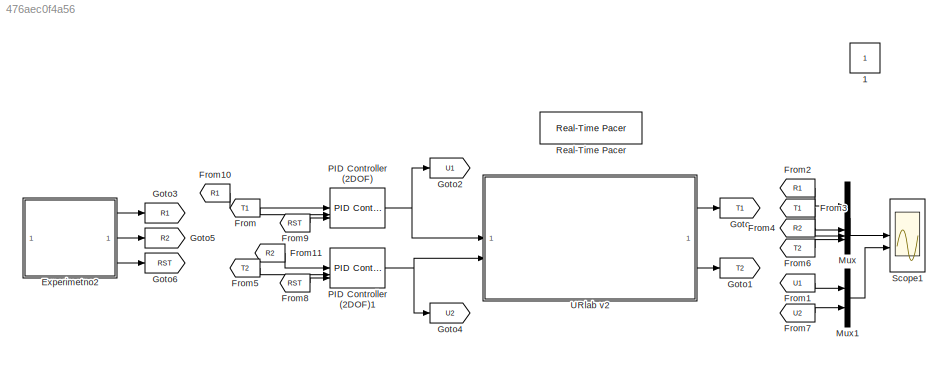
MODEL slx_476aec0f4a56
KIND model
CONFIG AbsTol = auto
CONFIG EnableMultiTasking = on
CONFIG FixedStep = auto
CONFIG MaxStep = auto
CONFIG MinStep = auto
CONFIG RelTol = 1e-3
CONFIG SampleTimeConstraint = Unconstrained
CONFIG SolverName = VariableStepAuto
CONFIG StartTime = 0.0
CONFIG StopTime = 1000
BLOCK [Constant] 1
  IOType = siggen
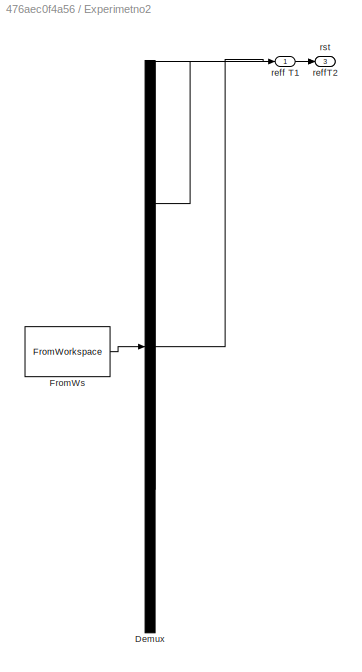
BLOCK [SubSystem] Experimetno2
  ClipboardFcn = sigbuilder_block('clipboard');
  CloseFcn = sigbuilder_block('close');
  ContinueFcn = sigbuilder_block('continue');
  CopyFcn = sigbuilder_block('copy');
  DeleteFcn = sigbuilder_block('delete');
  LoadFcn = sigbuilder_block('load');
  MaskHideContents = on
  ModelCloseFcn = sigbuilder_block('modelClose');
  NameChangeFcn = sigbuilder_block('namechange');
  OpenFcn = sigbuilder_block('open',[6 36 1908 945.75 ]);
  PauseFcn = sigbuilder_block('pause');
  PreSaveFcn = sigbuilder_block('preSave');
  StartFcn = sigbuilder_block('start');
  StopFcn = sigbuilder_block('stop');
  Tag = STV Subsys
BLOCK [Demux] Experimetno2/Demux
  DisplayOption = none
  Outputs = 3
  Tag = STV Demux
BLOCK [FromWorkspace] Experimetno2/FromWs
  Tag = STV FromWs
  VariableName = tuvar
BLOCK [Outport] Experimetno2/reff T1
  Tag = STV Outport
  VectorParamsAs1DForOutWhenUnconnected = off
BLOCK [Outport] Experimetno2/reffT2
  Port = 2
  Tag = STV Outport
BLOCK [Outport] Experimetno2/rst
  Port = 3
  Tag = STV Outport
BLOCK [From] From
  GotoTag = T1
BLOCK [From] From1
  GotoTag = U1
BLOCK [From] From10
  GotoTag = R1
BLOCK [From] From11
  GotoTag = R2
BLOCK [From] From2
  GotoTag = R1
BLOCK [From] From3
  GotoTag = T1
BLOCK [From] From4
  GotoTag = R2
BLOCK [From] From5
  GotoTag = T2
BLOCK [From] From6
  GotoTag = T2
BLOCK [From] From7
  GotoTag = U2
BLOCK [From] From8
  GotoTag = RST
BLOCK [From] From9
  GotoTag = RST
BLOCK [Goto] Goto
  GotoTag = T1
BLOCK [Goto] Goto1
  GotoTag = T2
BLOCK [Goto] Goto2
  GotoTag = U1
BLOCK [Goto] Goto3
  GotoTag = R1
BLOCK [Goto] Goto4
  GotoTag = U2
BLOCK [Goto] Goto5
  GotoTag = R2
BLOCK [Goto] Goto6
  GotoTag = RST
BLOCK [Mux] Mux
  DisplayOption = bar
BLOCK [Mux] Mux1
  DisplayOption = bar
  Inputs = 2
BLOCK [Reference] PID Controller (2DOF)  REF=slpidlib/PID Controller (2DOF)
  LibrarySourceBlock = simulink/Continuous/PID Controller (2DOF)
  SourceBlock = slpidlib/PID Controller (2DOF)
  SourceType = PID 2dof
BLOCK [Reference] PID Controller (2DOF)1  REF=slpidlib/PID Controller (2DOF)
  LibrarySourceBlock = simulink/Continuous/PID Controller (2DOF)
  SourceBlock = slpidlib/PID Controller (2DOF)
  SourceType = PID 2dof
BLOCK [Reference] Real-Time Pacer  REF=realtime_pacer_lib/Real-Time Pacer
  SourceBlock = realtime_pacer_lib/Real-Time Pacer
  SourceType = RealTime_Pacer
BLOCK [Scope] Scope1
  Floating = off
  NumInputPorts = 2
  ScopeSpecificationString = Simulink.scopes.TimeScopeBlockCfg('CurrentConfiguration', extmgr.ConfigurationSet(extmgr.Configuration('Core','General UI',true),extmgr.Configuration('Core','Source UI',true),extmgr.Configuration('Sources','WiredSimulink',true,'DataLoggingVariableName','DatosURlab','DataLogging',true,'DataLoggingSaveFormat','StructureWithTime'),extmgr.Configuration('Visuals','Time Domain',true,'SerializedDisplays'...<+2872ch>
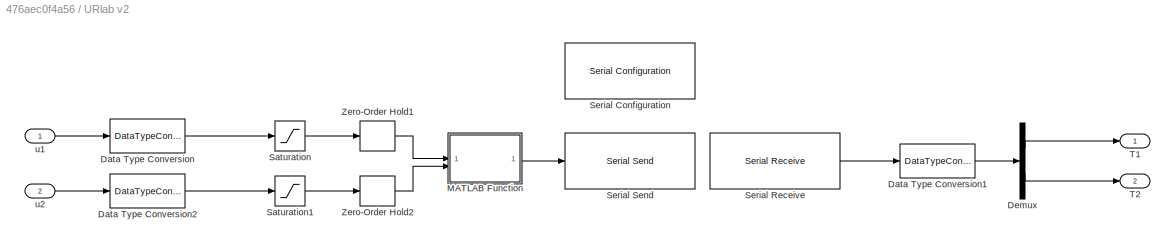
BLOCK [SubSystem] URlab v2
BLOCK [DataTypeConversion] URlab v2/Data Type Conversion
  OutDataTypeStr = single
  RndMeth = Floor
  SaturateOnIntegerOverflow = off
BLOCK [DataTypeConversion] URlab v2/Data Type Conversion1
  OutDataTypeStr = double
  RndMeth = Floor
  SaturateOnIntegerOverflow = off
BLOCK [DataTypeConversion] URlab v2/Data Type Conversion2
  OutDataTypeStr = single
  RndMeth = Floor
  SaturateOnIntegerOverflow = off
BLOCK [Demux] URlab v2/Demux
  Outputs = 2
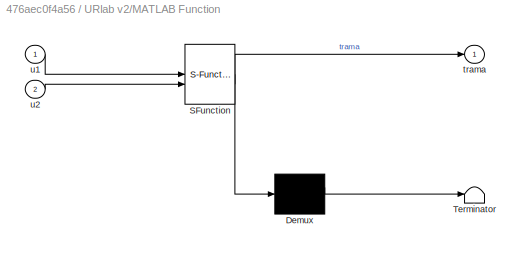
BLOCK [SubSystem] URlab v2/MATLAB Function
  ErrorFcn = Stateflow.Translate.translate
  LibrarySourceBlock = simulink/User-Defined\nFunctions/MATLAB Function
  PermitHierarchicalResolution = ExplicitOnly
  SFBlockType = MATLAB Function
  SystemSampleTime = 0.5
  TreatAsAtomicUnit = on
BLOCK [Demux] URlab v2/MATLAB Function/ Demux 
  Outputs = 1
BLOCK [S-Function] URlab v2/MATLAB Function/ SFunction 
  EnableBusSupport = on
  FunctionName = sf_sfun
  PortCounts = [2 2]
  SFcnIsStateOwnerBlock = off
  SFunctionDeploymentMode = off
  Tag = Stateflow S-Function 2
BLOCK [Terminator] URlab v2/MATLAB Function/ Terminator 
BLOCK [Outport] URlab v2/MATLAB Function/trama
BLOCK [Inport] URlab v2/MATLAB Function/u1
BLOCK [Inport] URlab v2/MATLAB Function/u2
  Port = 2
BLOCK [Saturate] URlab v2/Saturation
  LowerLimit = 0
  UpperLimit = 100
BLOCK [Saturate] URlab v2/Saturation1
  LowerLimit = 0
  UpperLimit = 100
BLOCK [Reference] URlab v2/Serial Configuration  REF=instrumentseriallib/Serial Configuration
  LibrarySourceBlock = instrumentlib/Serial Configuration
  Priority = -200000
  SourceBlock = instrumentseriallib/Serial Configuration
  SourceType = system.SerialConfiguration
BLOCK [Reference] URlab v2/Serial Receive  REF=instrumentseriallib/Serial Receive
  LibrarySourceBlock = instrumentlib/Serial Receive
  Priority = 1
  SourceBlock = instrumentseriallib/Serial Receive
  SourceType = system.SerialReceive
BLOCK [Reference] URlab v2/Serial Send  REF=instrumentseriallib/Serial Send
  LibrarySourceBlock = instrumentlib/Serial Send
  Priority = 1
  SourceBlock = instrumentseriallib/Serial Send
  SourceType = system.SerialSend
BLOCK [Outport] URlab v2/T1
BLOCK [Outport] URlab v2/T2
  Port = 2
BLOCK [ZeroOrderHold] URlab v2/Zero-Order Hold1
  SampleTime = 0.5
BLOCK [ZeroOrderHold] URlab v2/Zero-Order Hold2
  SampleTime = 0.5
BLOCK [Inport] URlab v2/u1
BLOCK [Inport] URlab v2/u2
  Port = 2
LINE Experimetno2:1 -> Goto3:1
LINE Experimetno2:2 -> Goto5:1
LINE Experimetno2:3 -> Goto6:1
LINE From10:1 -> PID Controller (2DOF):1
LINE From11:1 -> PID Controller (2DOF)1:1
LINE From1:1 -> Mux1:1
LINE From2:1 -> Mux:1
LINE From3:1 -> Mux:2
LINE From4:1 -> Mux:3
LINE From5:1 -> PID Controller (2DOF)1:2
LINE From6:1 -> Mux:4
LINE From7:1 -> Mux1:2
LINE From8:1 -> PID Controller (2DOF)1:3
LINE From9:1 -> PID Controller (2DOF):3
LINE From:1 -> PID Controller (2DOF):2
LINE Mux1:1 -> Scope1:2
LINE Mux:1 -> Scope1:1
NET PID Controller (2DOF)1:1 -> Goto4:1, URlab v2:2
NET PID Controller (2DOF):1 -> Goto2:1, URlab v2:1
LINE URlab v2/Data Type Conversion1:1 -> URlab v2/Demux:1
LINE URlab v2/Data Type Conversion2:1 -> URlab v2/Saturation1:1
LINE URlab v2/Data Type Conversion:1 -> URlab v2/Saturation:1
LINE URlab v2/Demux:1 -> URlab v2/T1:1
LINE URlab v2/Demux:2 -> URlab v2/T2:1
LINE URlab v2/MATLAB Function:1 -> URlab v2/Serial Send:1
LINE URlab v2/Saturation1:1 -> URlab v2/Zero-Order Hold2:1
LINE URlab v2/Saturation:1 -> URlab v2/Zero-Order Hold1:1
LINE URlab v2/Serial Receive:1 -> URlab v2/Data Type Conversion1:1
LINE URlab v2/Zero-Order Hold1:1 -> URlab v2/MATLAB Function:1
LINE URlab v2/Zero-Order Hold2:1 -> URlab v2/MATLAB Function:2
LINE URlab v2/u1:1 -> URlab v2/Data Type Conversion:1
LINE URlab v2/u2:1 -> URlab v2/Data Type Conversion2:1
LINE URlab v2:1 -> Goto:1
LINE URlab v2:2 -> Goto1:1
note: NET lines group one-source signal fan-out (src -> all destinations, sorted); 1:1 wires keep LINE
CHART URlab v2/MATLAB Function states=1 transitions=1
  STATE_LABEL 'eML_blk_kernel()'
  STATE_LABEL "SCRIPT:\nfunction trama = fcn(u1,u2)\nn = 2;\nz1=uint8(zeros(1,4*n));\nu1_b = typecast(single(u1),'uint8'); \nu2_b = typecast(single(u2),'uint8');\nz1(1:4) = u1_b;\nz1(5:8) = u2_b;\n%z1(9) = uint8(13);\n%z1(10) = uint8(11);\ntrama =z1;"
CHART  states=0 transitions=0
